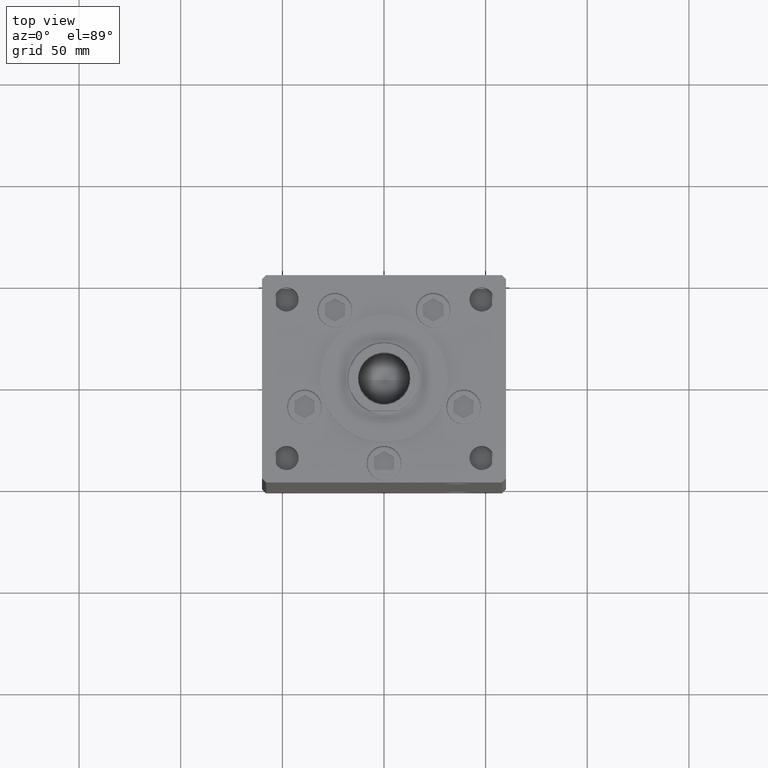
[diagram: clean part render]
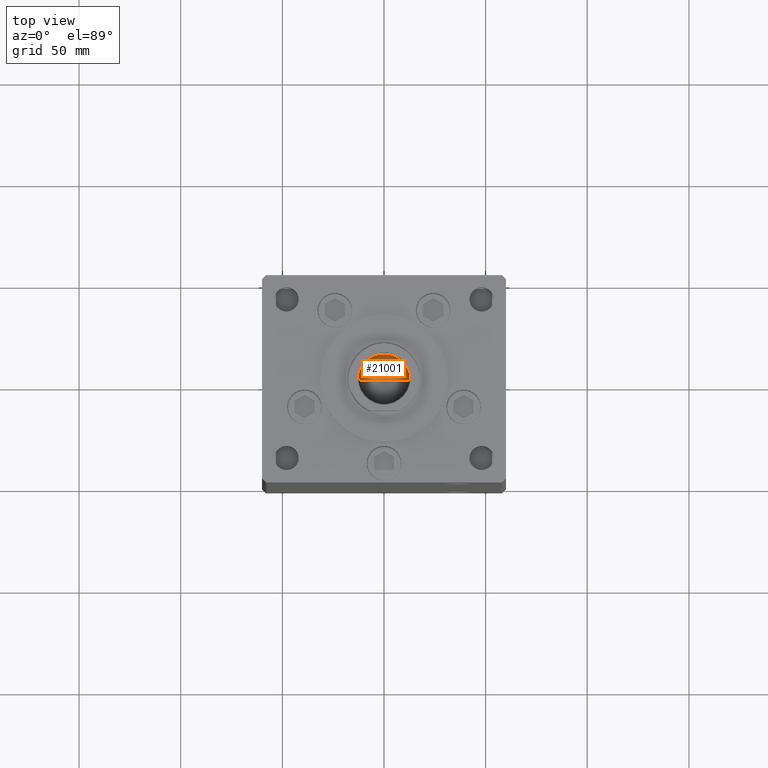
[diagram: same view with one face highlighted and labeled with its STEP entity id]
A machine part, top view. The second image highlights one B-rep face of the part: STEP entity #21001.
In plain terms, the highlighted conical surface has half-angle 59 deg.
Its self-contained STEP definition (entity closure, byte-faithful):
#305 = FACE_OUTER_BOUND ( 'NONE', #15076, .T. ) ;
#3372 = EDGE_CURVE ( 'NONE', #34907, #12246, #41968, .T. ) ;
#6270 = DIRECTION ( 'NONE',  ( 0.8571673007021110013, 0.000000000000000000, 0.5150380749100563760 ) ) ;
#8077 = AXIS2_PLACEMENT_3D ( 'NONE', #32460, #49306, #12407 ) ;
#9011 = ORIENTED_EDGE ( 'NONE', *, *, #33322, .T. ) ;
#10202 = VECTOR ( 'NONE', #14198, 1000.000000000000000 ) ;
#11236 = DIRECTION ( 'NONE',  ( 1.000000000000000000, 0.000000000000000000, 0.000000000000000000 ) ) ;
#12022 = LINE ( 'NONE', #26348, #10202 ) ;
#12246 = VERTEX_POINT ( 'NONE', #49743 ) ;
#12407 = DIRECTION ( 'NONE',  ( 1.000000000000000000, 0.000000000000000000, 0.000000000000000000 ) ) ;
#13492 = ORIENTED_EDGE ( 'NONE', *, *, #3372, .T. ) ;
#14170 = LINE ( 'NONE', #50041, #27712 ) ;
#14198 = DIRECTION ( 'NONE',  ( -0.8571673007021110013, 1.049727191138617093E-16, 0.5150380749100563760 ) ) ;
#15076 = EDGE_LOOP ( 'NONE', ( #35192, #9011, #13492 ) ) ;
#18555 = CARTESIAN_POINT ( 'NONE',  ( 12.74999999999999112, 0.000000000000000000, 244.2500000000000284 ) ) ;
#21001 = ADVANCED_FACE ( 'NONE', ( #305 ), #30797, .F. ) ;
#26348 = CARTESIAN_POINT ( 'NONE',  ( -12.74999999999999112, 1.561424668912874125E-15, 244.2500000000000284 ) ) ;
#27712 = VECTOR ( 'NONE', #6270, 1000.000000000000000 ) ;
#30797 = CONICAL_SURFACE ( 'NONE', #8077, 12.74999999999999112, 1.029744258676651869 ) ;
#32460 = CARTESIAN_POINT ( 'NONE',  ( 0.000000000000000000, 0.000000000000000000, 244.2500000000000284 ) ) ;
#33322 = EDGE_CURVE ( 'NONE', #34167, #34907, #14170, .T. ) ;
#34167 = VERTEX_POINT ( 'NONE', #50697 ) ;
#34907 = VERTEX_POINT ( 'NONE', #18555 ) ;
#35192 = ORIENTED_EDGE ( 'NONE', *, *, #40956, .F. ) ;
#37756 = AXIS2_PLACEMENT_3D ( 'NONE', #47878, #44193, #11236 ) ;
#40956 = EDGE_CURVE ( 'NONE', #34167, #12246, #12022, .T. ) ;
#41968 = CIRCLE ( 'NONE', #37756, 12.74999999999999112 ) ;
#44193 = DIRECTION ( 'NONE',  ( -0.000000000000000000, -0.000000000000000000, 1.000000000000000000 ) ) ;
#47878 = CARTESIAN_POINT ( 'NONE',  ( 0.000000000000000000, 0.000000000000000000, 244.2500000000000284 ) ) ;
#49306 = DIRECTION ( 'NONE',  ( -0.000000000000000000, -0.000000000000000000, 1.000000000000000000 ) ) ;
#49743 = CARTESIAN_POINT ( 'NONE',  ( -12.74999999999999112, 1.561424668912874125E-15, 244.2500000000000284 ) ) ;
#50041 = CARTESIAN_POINT ( 'NONE',  ( 12.74999999999999112, 0.000000000000000000, 244.2500000000000284 ) ) ;
#50697 = CARTESIAN_POINT ( 'NONE',  ( -1.307202896762960287E-14, 0.000000000000000000, 236.5890271073986071 ) ) ;